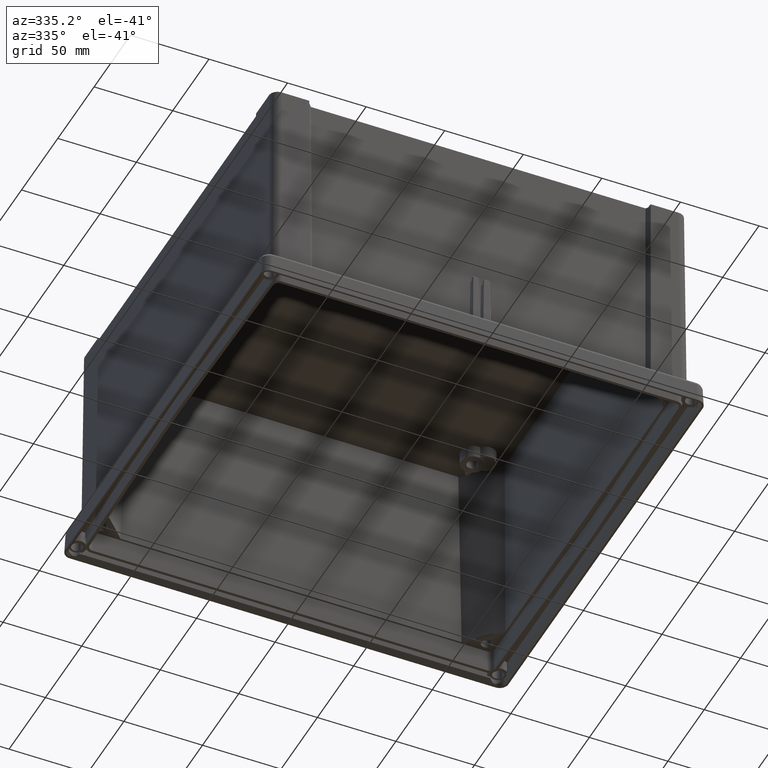
[diagram: clean part render]
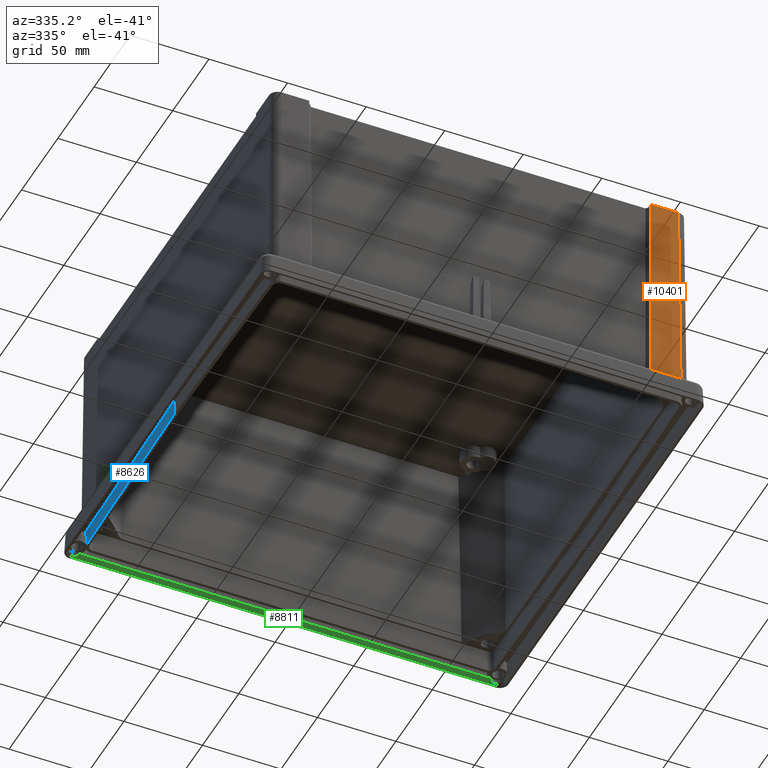
[diagram: same view with three faces highlighted in distinct colors, each labeled with its STEP entity id]
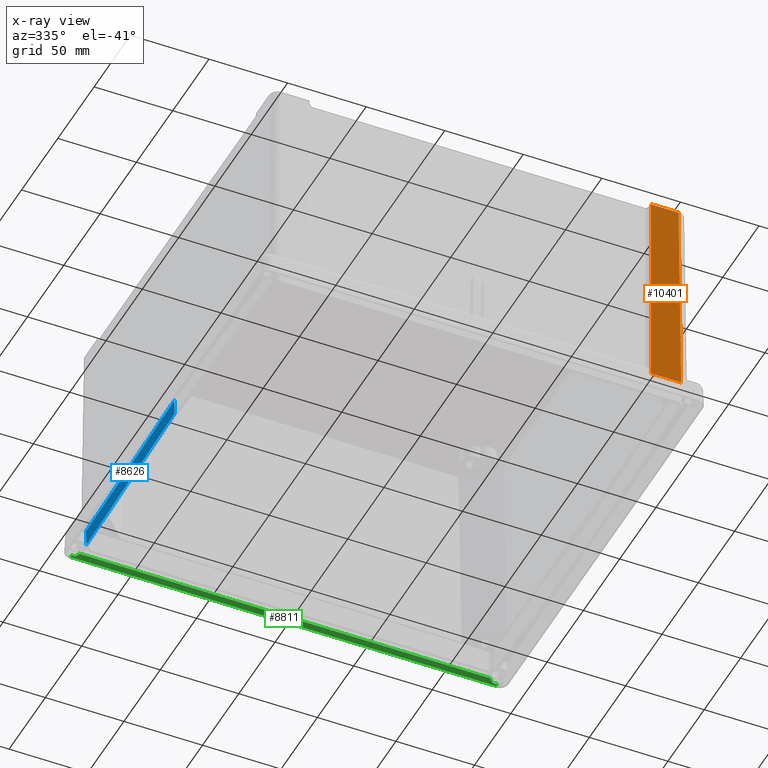
[diagram: x-ray of the same camera — body ghosted, the three highlighted faces saturated]
A machine part, auxiliary view with three faces highlighted in distinct colors.
The next image is the same camera in x-ray (body ghosted, the three faces saturated) — at least one of them is partly hidden behind the body in this view.
Their STEP definitions:

[orange] entity #10401 — the highlighted planar face has unit normal (0, -1, 0.0087).
#2862 = CARTESIAN_POINT ( 'NONE',  ( 127.4426358398394400, -133.3574264166923900, 15.19142795402333800 ) ) ;
#2874 = DIRECTION ( 'NONE',  ( 0.003944939861817612700, 0.008726467594535082500, 0.9999541420549285000 ) ) ;
#2875 = VECTOR ( 'NONE', #2874, 1000.000000000000100 ) ;
#2876 = CARTESIAN_POINT ( 'NONE',  ( 108.1349320180529400, -133.3574264166924200, 15.19142795402333200 ) ) ;
#2877 = LINE ( 'NONE', #2876, #2875 ) ;
#2906 = CARTESIAN_POINT ( 'NONE',  ( 126.3032684426439700, -132.2180590194969100, 145.7500000000000000 ) ) ;
#2907 = DIRECTION ( 'NONE',  ( 0.008726203243944090700, -0.008726203243944089000, -0.9999238504775704900 ) ) ;
#2908 = VECTOR ( 'NONE', #2907, 1000.000000000000000 ) ;
#2909 = CARTESIAN_POINT ( 'NONE',  ( 126.2974964789828100, -132.2122870558357300, 146.4114015245286900 ) ) ;
#2910 = DIRECTION ( 'NONE',  ( 0.0000000000000000000, -0.008726535498373934700, -0.9999619230641713100 ) ) ;
#2911 = DIRECTION ( 'NONE',  ( 0.0000000000000000000, -0.9999619230641713100, 0.008726535498373934700 ) ) ;
#2912 = CARTESIAN_POINT ( 'NONE',  ( 99.80250638222540300, -133.4900000000000100, 0.0000000000000000000 ) ) ;
#2913 = AXIS2_PLACEMENT_3D ( 'NONE', #2912, #2911, #2910 ) ;
#2914 = PLANE ( 'NONE',  #2913 ) ;
#2915 = LINE ( 'NONE', #2909, #2908 ) ;
#2916 = FACE_OUTER_BOUND ( 'NONE', #10402, .T. ) ;
#2953 = CARTESIAN_POINT ( 'NONE',  ( 108.1349320180529200, -133.3574264166923900, 15.19142795402333600 ) ) ;
#2954 = DIRECTION ( 'NONE',  ( 1.000000000000000000, 0.0000000000000000000, 0.0000000000000000000 ) ) ;
#2955 = VECTOR ( 'NONE', #2954, 1000.000000000000000 ) ;
#2956 = CARTESIAN_POINT ( 'NONE',  ( 99.80250638222540300, -133.3574264166923900, 15.19142795402333800 ) ) ;
#2957 = LINE ( 'NONE', #2956, #2955 ) ;
#2958 = CARTESIAN_POINT ( 'NONE',  ( 108.6347003764985900, -132.2298830995849800, 143.7500152039090700 ) ) ;
#2959 = DIRECTION ( 'NONE',  ( -0.007996140876372178500, -0.008726256514118159400, -0.9999299546359911000 ) ) ;
#2960 = VECTOR ( 'NONE', #2959, 999.9999999999998900 ) ;
#2961 = CARTESIAN_POINT ( 'NONE',  ( 108.6472730217633100, -132.2180590194952300, 145.7500000001919900 ) ) ;
#2962 = LINE ( 'NONE', #2961, #2960 ) ;
#2963 = CARTESIAN_POINT ( 'NONE',  ( 108.6472730217617800, -132.2180590194969100, 145.7500000000000000 ) ) ;
#2964 = DIRECTION ( 'NONE',  ( 1.000000000000000000, 0.0000000000000000000, -0.0000000000000000000 ) ) ;
#2965 = VECTOR ( 'NONE', #2964, 1000.000000000000000 ) ;
#2966 = CARTESIAN_POINT ( 'NONE',  ( 0.0000000000000000000, -132.2180590194969100, 145.7500000000000000 ) ) ;
#2967 = LINE ( 'NONE', #2966, #2965 ) ;
#10349 = VERTEX_POINT ( 'NONE', #2862 ) ;
#10385 = ORIENTED_EDGE ( 'NONE', *, *, #10386, .F. ) ;
#10386 = EDGE_CURVE ( 'NONE', #10413, #10411, #2877, .T. ) ;
#10387 = ORIENTED_EDGE ( 'NONE', *, *, #10412, .T. ) ;
#10401 = ADVANCED_FACE ( 'NONE', ( #2916 ), #2914, .T. ) ;
#10402 = EDGE_LOOP ( 'NONE', ( #10403, #10406, #10409, #10385, #10387 ) ) ;
#10403 = ORIENTED_EDGE ( 'NONE', *, *, #10404, .F. ) ;
#10404 = EDGE_CURVE ( 'NONE', #10405, #10349, #2915, .T. ) ;
#10405 = VERTEX_POINT ( 'NONE', #2906 ) ;
#10406 = ORIENTED_EDGE ( 'NONE', *, *, #10407, .F. ) ;
#10407 = EDGE_CURVE ( 'NONE', #10408, #10405, #2967, .T. ) ;
#10408 = VERTEX_POINT ( 'NONE', #2963 ) ;
#10409 = ORIENTED_EDGE ( 'NONE', *, *, #10410, .T. ) ;
#10410 = EDGE_CURVE ( 'NONE', #10408, #10411, #2962, .T. ) ;
#10411 = VERTEX_POINT ( 'NONE', #2958 ) ;
#10412 = EDGE_CURVE ( 'NONE', #10413, #10349, #2957, .T. ) ;
#10413 = VERTEX_POINT ( 'NONE', #2953 ) ;

[blue] entity #8626 — the highlighted planar face has unit normal (-0.9992, 0.0174, -0.0349).
#8311 = VERTEX_POINT ( 'NONE', #14669 ) ;
#8313 = EDGE_CURVE ( 'NONE', #8314, #8311, #14704, .T. ) ;
#8314 = VERTEX_POINT ( 'NONE', #14700 ) ;
#8606 = ORIENTED_EDGE ( 'NONE', *, *, #8607, .T. ) ;
#8607 = EDGE_CURVE ( 'NONE', #8633, #8314, #15418, .T. ) ;
#8608 = ORIENTED_EDGE ( 'NONE', *, *, #8313, .T. ) ;
#8626 = ADVANCED_FACE ( 'NONE', ( #15432 ), #15430, .T. ) ;
#8627 = EDGE_LOOP ( 'NONE', ( #8628, #8631, #8606, #8608 ) ) ;
#8628 = ORIENTED_EDGE ( 'NONE', *, *, #8629, .F. ) ;
#8629 = EDGE_CURVE ( 'NONE', #8630, #8311, #15473, .T. ) ;
#8630 = VERTEX_POINT ( 'NONE', #15466 ) ;
#8631 = ORIENTED_EDGE ( 'NONE', *, *, #8632, .F. ) ;
#8632 = EDGE_CURVE ( 'NONE', #8633, #8630, #15465, .T. ) ;
#8633 = VERTEX_POINT ( 'NONE', #15461 ) ;
#14669 = CARTESIAN_POINT ( 'NONE',  ( -131.3307463699606800, 126.4467596984490700, 11.85873429810520300 ) ) ;
#14700 = CARTESIAN_POINT ( 'NONE',  ( -133.5216182429553000, -9.258383704807691200E-015, 11.39305010572189900 ) ) ;
#14701 = DIRECTION ( 'NONE',  ( 0.01732371984429520800, 0.9998431525074352700, 0.003682270325438107500 ) ) ;
#14702 = VECTOR ( 'NONE', #14701, 1000.000000000000100 ) ;
#14703 = CARTESIAN_POINT ( 'NONE',  ( -133.5216182429553000, 0.0000000000000000000, 11.39305010572190100 ) ) ;
#14704 = LINE ( 'NONE', #14703, #14702 ) ;
#15415 = DIRECTION ( 'NONE',  ( -0.03490480639812529300, -0.0000000000000000000, 0.9993906415863165200 ) ) ;
#15416 = VECTOR ( 'NONE', #15415, 1000.000000000000100 ) ;
#15417 = CARTESIAN_POINT ( 'NONE',  ( -133.5674957827754400, -2.775557561562891400E-014, 12.70661086386740700 ) ) ;
#15418 = LINE ( 'NONE', #15417, #15416 ) ;
#15429 = CARTESIAN_POINT ( 'NONE',  ( -131.1799070561593800, 136.9517210522572800, 12.78999999999999900 ) ) ;
#15430 = PLANE ( 'NONE',  #15472 ) ;
#15432 = FACE_OUTER_BOUND ( 'NONE', #8627, .T. ) ;
#15461 = CARTESIAN_POINT ( 'NONE',  ( -133.1830779132094400, 1.519071863183484000E-011, 1.700000000000000600 ) ) ;
#15462 = DIRECTION ( 'NONE',  ( 0.01745240643728340800, 0.9998476951563911600, 0.0000000000000000000 ) ) ;
#15463 = VECTOR ( 'NONE', #15462, 1000.000000000000200 ) ;
#15464 = CARTESIAN_POINT ( 'NONE',  ( -133.1830779132094700, 0.0000000000000000000, 1.700000000000000000 ) ) ;
#15465 = LINE ( 'NONE', #15464, #15463 ) ;
#15466 = CARTESIAN_POINT ( 'NONE',  ( -130.9821337112849700, 126.0920088796970800, 1.700000000000000600 ) ) ;
#15467 = DIRECTION ( 'NONE',  ( -0.03427548855824043300, 0.03487899055459561100, 0.9988036077738137200 ) ) ;
#15468 = VECTOR ( 'NONE', #15467, 1000.000000000000100 ) ;
#15469 = CARTESIAN_POINT ( 'NONE',  ( -131.3820865306951800, 126.4990038255688600, 13.35481035485220300 ) ) ;
#15470 = DIRECTION ( 'NONE',  ( -0.03490480639812529300, 0.0000000000000000000, 0.9993906415863165200 ) ) ;
#15471 = DIRECTION ( 'NONE',  ( -0.9992386149554826100, 0.01744177490283009600, -0.03489949670250097600 ) ) ;
#15472 = AXIS2_PLACEMENT_3D ( 'NONE', #15429, #15471, #15470 ) ;
#15473 = LINE ( 'NONE', #15469, #15468 ) ;

[green] entity #8811 — the highlighted planar face has unit normal (0, 0.829, 0.5592).
#5636 = CARTESIAN_POINT ( 'NONE',  ( -130.7560226303573100, 136.3478859788915500, 2.820000103463517100 ) ) ;
#5653 =( BOUNDED_CURVE ( )  B_SPLINE_CURVE ( 3, ( #5678, #5677, #5676, #5675 ),
 .UNSPECIFIED., .F., .F. ) 
 B_SPLINE_CURVE_WITH_KNOTS ( ( 4, 4 ),
 ( 5.956277858280283300, 7.048707884774393600 ),
 .UNSPECIFIED. ) 
 CURVE ( )  GEOMETRIC_REPRESENTATION_ITEM ( )  RATIONAL_B_SPLINE_CURVE ( ( 1.000000000000000000, 0.9029978499294700800, 0.9029978499294700800, 1.000000000000000000 ) ) 
 REPRESENTATION_ITEM ( '' )  );
#5654 = CARTESIAN_POINT ( 'NONE',  ( -135.5033504513949400, 137.4063840776613600, 1.250712038874852700 ) ) ;
#5675 = CARTESIAN_POINT ( 'NONE',  ( -130.7560226303573100, 136.3478859788915500, 2.820000103463517100 ) ) ;
#5676 = CARTESIAN_POINT ( 'NONE',  ( -132.0505685104644200, 137.5923852685201000, 0.9749539332110429600 ) ) ;
#5677 = CARTESIAN_POINT ( 'NONE',  ( -133.8030008330297300, 137.9831200977795900, 0.3956657263124579400 ) ) ;
#5678 = CARTESIAN_POINT ( 'NONE',  ( -135.5033504513949400, 137.4063840776613600, 1.250712038874852700 ) ) ;
#8531 = VERTEX_POINT ( 'NONE', #15183 ) ;
#8533 = EDGE_CURVE ( 'NONE', #8531, #8548, #15176, .T. ) ;
#8548 = VERTEX_POINT ( 'NONE', #15235 ) ;
#8811 = ADVANCED_FACE ( 'NONE', ( #15992 ), #15991, .F. ) ;
#8812 = EDGE_LOOP ( 'NONE', ( #8813, #8814, #8874, #8876, #8877, #8879 ) ) ;
#8813 = ORIENTED_EDGE ( 'NONE', *, *, #8887, .F. ) ;
#8814 = ORIENTED_EDGE ( 'NONE', *, *, #8815, .T. ) ;
#8815 = EDGE_CURVE ( 'NONE', #8888, #8816, #15989, .T. ) ;
#8816 = VERTEX_POINT ( 'NONE', #15982 ) ;
#8874 = ORIENTED_EDGE ( 'NONE', *, *, #8875, .T. ) ;
#8875 = EDGE_CURVE ( 'NONE', #8816, #8548, #16154, .T. ) ;
#8876 = ORIENTED_EDGE ( 'NONE', *, *, #8533, .F. ) ;
#8877 = ORIENTED_EDGE ( 'NONE', *, *, #8878, .T. ) ;
#8878 = EDGE_CURVE ( 'NONE', #8531, #16461, #16150, .T. ) ;
#8879 = ORIENTED_EDGE ( 'NONE', *, *, #16460, .F. ) ;
#8887 = EDGE_CURVE ( 'NONE', #8888, #16458, #16181, .T. ) ;
#8888 = VERTEX_POINT ( 'NONE', #16200 ) ;
#15171 = CARTESIAN_POINT ( 'NONE',  ( 135.5033504513951100, 137.4063840776603600, 1.250712038877302500 ) ) ;
#15172 = CARTESIAN_POINT ( 'NONE',  ( 133.8030008330281400, 137.9831200977792200, 0.3956657263130513000 ) ) ;
#15173 = CARTESIAN_POINT ( 'NONE',  ( 132.0505685104610100, 137.5923852685185100, 0.9749539332134452600 ) ) ;
#15174 = CARTESIAN_POINT ( 'NONE',  ( 130.7560226303574200, 136.3478859788910700, 2.820000103474881800 ) ) ;
#15176 =( BOUNDED_CURVE ( )  B_SPLINE_CURVE ( 3, ( #15174, #15173, #15172, #15171 ),
 .UNSPECIFIED., .F., .T. ) 
 B_SPLINE_CURVE_WITH_KNOTS ( ( 4, 4 ),
 ( 5.517662729583899600, 6.610092756078873100 ),
 .UNSPECIFIED. ) 
 CURVE ( )  GEOMETRIC_REPRESENTATION_ITEM ( )  RATIONAL_B_SPLINE_CURVE ( ( 1.000000000000000000, 0.9029978499293205300, 0.9029978499293205300, 1.000000000000000000 ) ) 
 REPRESENTATION_ITEM ( '' )  );
#15183 = CARTESIAN_POINT ( 'NONE',  ( 130.7560226303574200, 136.3478859788910700, 2.820000103474881800 ) ) ;
#15235 = CARTESIAN_POINT ( 'NONE',  ( 135.5033504513951100, 137.4063840776603600, 1.250712038877302500 ) ) ;
#15982 = CARTESIAN_POINT ( 'NONE',  ( 135.5033513684115300, 138.2500000000000300, 4.824699667560494700E-015 ) ) ;
#15983 = DIRECTION ( 'NONE',  ( 1.000000000000000000, 0.0000000000000000000, 0.0000000000000000000 ) ) ;
#15984 = VECTOR ( 'NONE', #15983, 1000.000000000000000 ) ;
#15985 = CARTESIAN_POINT ( 'NONE',  ( 0.0000000000000000000, 138.2500000000000000, 0.0000000000000000000 ) ) ;
#15986 = DIRECTION ( 'NONE',  ( 0.0000000000000000000, -0.5591929034707464600, 0.8290375725550419600 ) ) ;
#15987 = DIRECTION ( 'NONE',  ( 0.0000000000000000000, 0.8290375725550419600, 0.5591929034707464600 ) ) ;
#15988 = CARTESIAN_POINT ( 'NONE',  ( 135.5033504513949700, 136.3478859825043500, 2.819999999999999800 ) ) ;
#15989 = LINE ( 'NONE', #15985, #15984 ) ;
#15990 = AXIS2_PLACEMENT_3D ( 'NONE', #15988, #15987, #15986 ) ;
#15991 = PLANE ( 'NONE',  #15990 ) ;
#15992 = FACE_OUTER_BOUND ( 'NONE', #8812, .T. ) ;
#16147 = DIRECTION ( 'NONE',  ( -1.000000000000000000, -0.0000000000000000000, 0.0000000000000000000 ) ) ;
#16148 = VECTOR ( 'NONE', #16147, 1000.000000000000000 ) ;
#16149 = CARTESIAN_POINT ( 'NONE',  ( 135.5033504513949700, 136.3478859825043200, 2.819999999999997200 ) ) ;
#16150 = LINE ( 'NONE', #16149, #16148 ) ;
#16151 = DIRECTION ( 'NONE',  ( -0.0000000000000000000, -0.5591929034707490100, 0.8290375725550401800 ) ) ;
#16152 = VECTOR ( 'NONE', #16151, 999.9999999999998900 ) ;
#16153 = CARTESIAN_POINT ( 'NONE',  ( 135.5033504513949700, 137.2989429912522300, 1.409999999999999900 ) ) ;
#16154 = LINE ( 'NONE', #16153, #16152 ) ;
#16180 = CARTESIAN_POINT ( 'NONE',  ( -135.5033504513950800, 136.3478859825043500, 2.819999999999999800 ) ) ;
#16181 = LINE ( 'NONE', #16180, #16202 ) ;
#16200 = CARTESIAN_POINT ( 'NONE',  ( -135.5033509099032800, 138.2499999999999700, -1.517883041479706200E-015 ) ) ;
#16201 = DIRECTION ( 'NONE',  ( 0.0000000000000000000, -0.5591929034707464600, 0.8290375725550419600 ) ) ;
#16202 = VECTOR ( 'NONE', #16201, 1000.000000000000100 ) ;
#16458 = VERTEX_POINT ( 'NONE', #5654 ) ;
#16460 = EDGE_CURVE ( 'NONE', #16458, #16461, #5653, .T. ) ;
#16461 = VERTEX_POINT ( 'NONE', #5636 ) ;